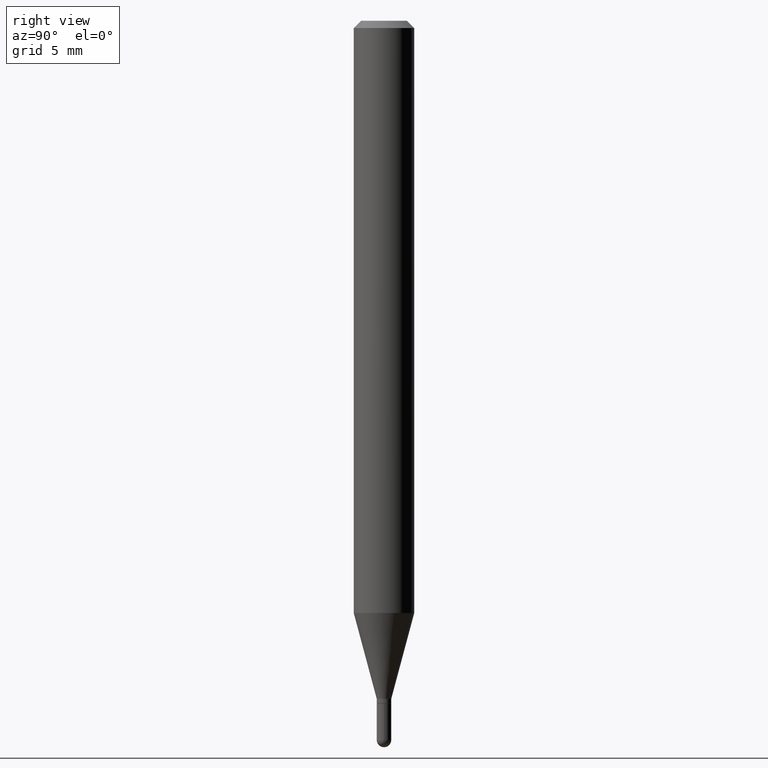
[diagram: clean part render]
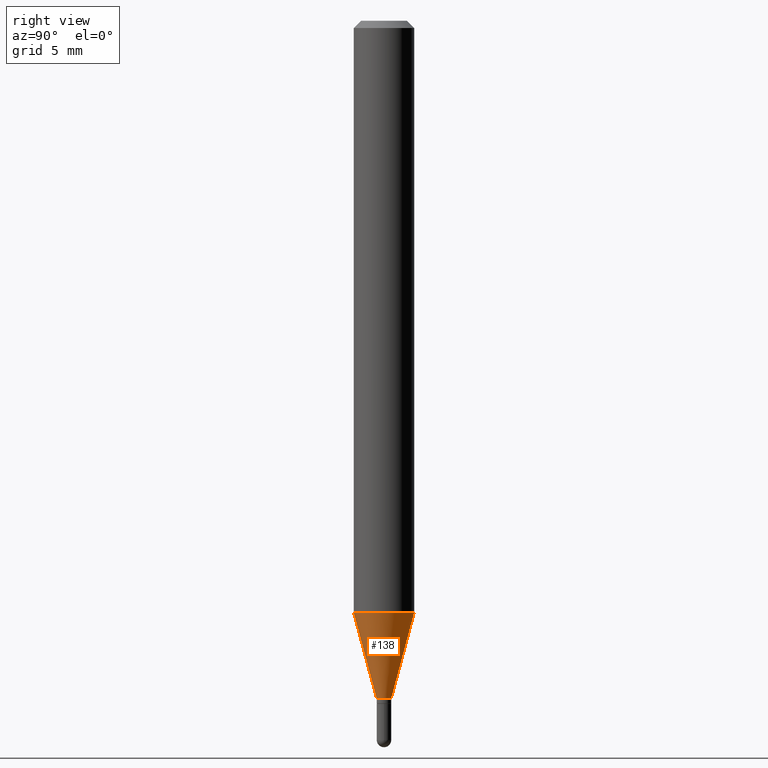
[diagram: same view with one face highlighted and labeled with its STEP entity id]
A machine part, right view. The second image highlights one B-rep face of the part: STEP entity #138.
In plain terms, the highlighted conical surface has half-angle 15 deg.
Its self-contained STEP definition (entity closure, byte-faithful):
#16 = EDGE_CURVE ( 'NONE', #374, #212, #372, .T. ) ;
#21 = DIRECTION ( 'NONE',  ( 1.839019923739601499E-15, 0.2588190451025251249, 0.9659258262890670910 ) ) ;
#23 = CARTESIAN_POINT ( 'NONE',  ( 3.423652040580666788E-29, -4.888080015152912343E-15, -1.400000000000000133 ) ) ;
#40 = CARTESIAN_POINT ( 'NONE',  ( -1.047444401652592020E-16, -0.01500000000000480983, -1.400000000000000133 ) ) ;
#42 = EDGE_CURVE ( 'NONE', #88, #137, #430, .T. ) ;
#50 = ORIENTED_EDGE ( 'NONE', *, *, #42, .F. ) ;
#72 = ORIENTED_EDGE ( 'NONE', *, *, #16, .T. ) ;
#74 = DIRECTION ( 'NONE',  ( -2.445465743271904969E-29, 3.491485725109223553E-15, 1.000000000000000000 ) ) ;
#75 = DIRECTION ( 'NONE',  ( -1.807323732225331323E-15, -0.2588190451025183525, 0.9659258262890689783 ) ) ;
#88 = VERTEX_POINT ( 'NONE', #254 ) ;
#118 = AXIS2_PLACEMENT_3D ( 'NONE', #23, #425, #334 ) ;
#119 = CIRCLE ( 'NONE', #180, 0.01499999999999992312 ) ;
#125 = VECTOR ( 'NONE', #75, 39.37007874015748854 ) ;
#127 = EDGE_LOOP ( 'NONE', ( #363, #72, #266, #50 ) ) ;
#135 = CARTESIAN_POINT ( 'NONE',  ( 4.440892098500922971E-16, 0.06249999999999571176, -1.222727586640479203 ) ) ;
#137 = VERTEX_POINT ( 'NONE', #491 ) ;
#138 = ADVANCED_FACE ( 'NONE', ( #224 ), #209, .T. ) ;
#151 = CARTESIAN_POINT ( 'NONE',  ( 2.753353101070707689E-16, 0.01499999999999503640, -1.400000000000000133 ) ) ;
#166 = VECTOR ( 'NONE', #21, 39.37007874015748854 ) ;
#180 = AXIS2_PLACEMENT_3D ( 'NONE', #359, #399, #439 ) ;
#209 = CONICAL_SURFACE ( 'NONE', #118, 0.01499999999999992312, 0.2617993877991504625 ) ;
#212 = VERTEX_POINT ( 'NONE', #135 ) ;
#224 = FACE_OUTER_BOUND ( 'NONE', #127, .T. ) ;
#254 = CARTESIAN_POINT ( 'NONE',  ( -1.047444401652592020E-16, -0.01500000000000480983, -1.400000000000000133 ) ) ;
#266 = ORIENTED_EDGE ( 'NONE', *, *, #292, .F. ) ;
#292 = EDGE_CURVE ( 'NONE', #137, #212, #388, .T. ) ;
#309 = DIRECTION ( 'NONE',  ( -6.982962677686265922E-15, -1.000000000000000000, 4.370956789862821150E-15 ) ) ;
#334 = DIRECTION ( 'NONE',  ( -6.982962677686265133E-15, -1.000000000000000000, 0.000000000000000000 ) ) ;
#359 = CARTESIAN_POINT ( 'NONE',  ( 3.423652040580666788E-29, -4.888080015152912343E-15, -1.400000000000000133 ) ) ;
#363 = ORIENTED_EDGE ( 'NONE', *, *, #438, .T. ) ;
#372 = LINE ( 'NONE', #495, #166 ) ;
#374 = VERTEX_POINT ( 'NONE', #151 ) ;
#378 = AXIS2_PLACEMENT_3D ( 'NONE', #470, #74, #309 ) ;
#388 = CIRCLE ( 'NONE', #378, 0.06250000000000000000 ) ;
#399 = DIRECTION ( 'NONE',  ( -2.445465743271904969E-29, 3.491485725109223553E-15, 1.000000000000000000 ) ) ;
#425 = DIRECTION ( 'NONE',  ( -2.445465743271904969E-29, 3.491485725109223553E-15, 1.000000000000000000 ) ) ;
#430 = LINE ( 'NONE', #40, #125 ) ;
#438 = EDGE_CURVE ( 'NONE', #88, #374, #119, .T. ) ;
#439 = DIRECTION ( 'NONE',  ( -6.982962677686265133E-15, -1.000000000000000000, 0.000000000000000000 ) ) ;
#470 = CARTESIAN_POINT ( 'NONE',  ( 2.990138426482821198E-29, -4.269135914452482936E-15, -1.222727586640478759 ) ) ;
#491 = CARTESIAN_POINT ( 'NONE',  ( -4.364351673553618406E-16, -0.06250000000000428824, -1.222727586640478536 ) ) ;
#495 = CARTESIAN_POINT ( 'NONE',  ( 1.065814103640487108E-16, 0.01499999999999503640, -1.400000000000000133 ) ) ;